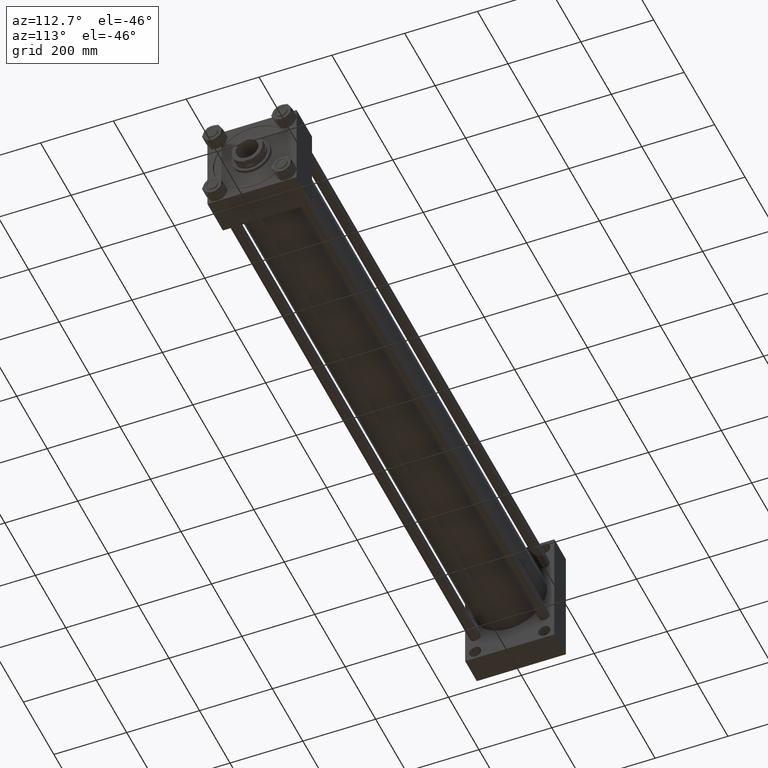
[diagram: clean part render]
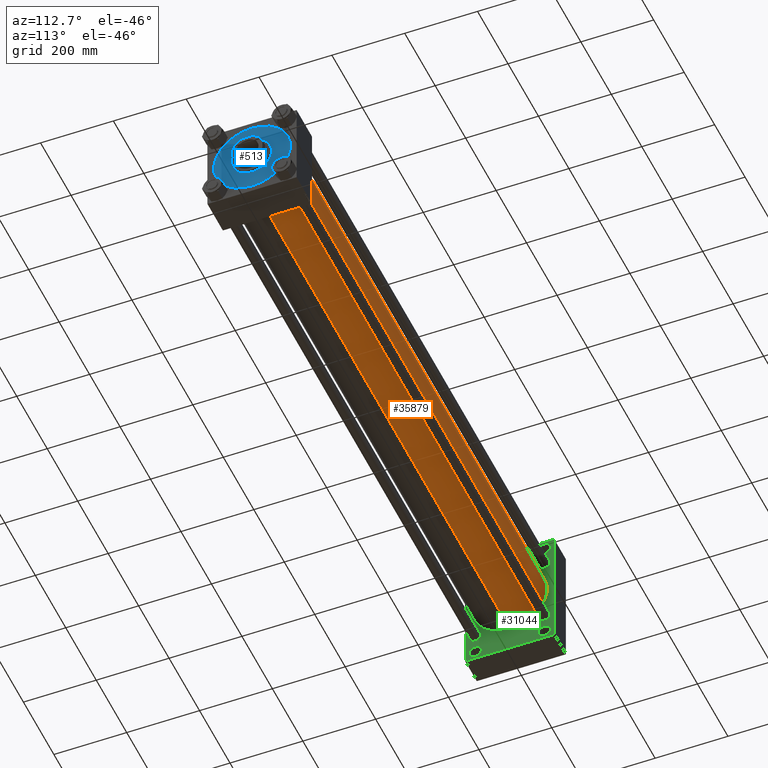
[diagram: same view with three faces highlighted in distinct colors, each labeled with its STEP entity id]
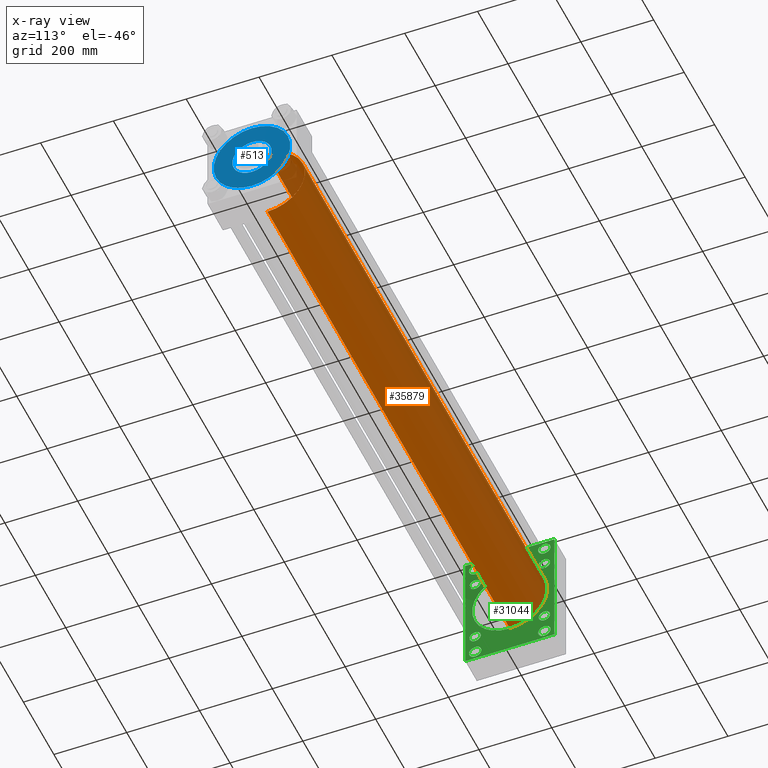
[diagram: x-ray of the same camera — body ghosted, the three highlighted faces saturated]
A machine part, auxiliary view with three faces highlighted in distinct colors.
The next image is the same camera in x-ray (body ghosted, the three faces saturated) — at least one of them is partly hidden behind the body in this view.
Their STEP definitions:

[orange] entity #35879 — the highlighted cylindrical surface (partial cylindrical patch) has radius 103 mm, axis along (-1, -0, -0).
#1401 = CARTESIAN_POINT ( 'NONE',  ( 1667.000000000000000, 1.001177681725252697E-14, -103.0000000000000000 ) ) ;
#2006 = ORIENTED_EDGE ( 'NONE', *, *, #9141, .F. ) ;
#3063 = VERTEX_POINT ( 'NONE', #11880 ) ;
#5039 = ORIENTED_EDGE ( 'NONE', *, *, #18078, .T. ) ;
#5589 = CARTESIAN_POINT ( 'NONE',  ( 1667.000000000000000, -2.602085213965210642E-15, 0.000000000000000000 ) ) ;
#6176 = DIRECTION ( 'NONE',  ( -1.000000000000000000, -0.000000000000000000, -0.000000000000000000 ) ) ;
#9087 = CIRCLE ( 'NONE', #31890, 103.0000000000000000 ) ;
#9141 = EDGE_CURVE ( 'NONE', #41980, #22929, #9087, .T. ) ;
#9630 = DIRECTION ( 'NONE',  ( 1.000000000000000000, 0.000000000000000000, 0.000000000000000000 ) ) ;
#11579 = CARTESIAN_POINT ( 'NONE',  ( 1667.000000000000000, -2.602085213965210642E-15, 103.0000000000000000 ) ) ;
#11880 = CARTESIAN_POINT ( 'NONE',  ( 76.00000000000007105, -2.602085213965210642E-15, 103.0000000000000000 ) ) ;
#12776 = FACE_OUTER_BOUND ( 'NONE', #30690, .T. ) ;
#16975 = DIRECTION ( 'NONE',  ( 0.000000000000000000, 0.000000000000000000, 1.000000000000000000 ) ) ;
#17552 = CARTESIAN_POINT ( 'NONE',  ( 1667.000000000000000, -2.602085213965210642E-15, 0.000000000000000000 ) ) ;
#18078 = EDGE_CURVE ( 'NONE', #41980, #43590, #33264, .T. ) ;
#18743 = LINE ( 'NONE', #11579, #31630 ) ;
#19004 = DIRECTION ( 'NONE',  ( -1.000000000000000000, -0.000000000000000000, -0.000000000000000000 ) ) ;
#20189 = CARTESIAN_POINT ( 'NONE',  ( 1667.000000000000000, -2.602085213965210642E-15, 103.0000000000000000 ) ) ;
#21312 = DIRECTION ( 'NONE',  ( 1.000000000000000000, -0.000000000000000000, 0.000000000000000000 ) ) ;
#22117 = AXIS2_PLACEMENT_3D ( 'NONE', #37135, #21312, #16975 ) ;
#22929 = VERTEX_POINT ( 'NONE', #20189 ) ;
#23758 = CIRCLE ( 'NONE', #22117, 103.0000000000000000 ) ;
#28349 = CYLINDRICAL_SURFACE ( 'NONE', #37454, 103.0000000000000000 ) ;
#29105 = DIRECTION ( 'NONE',  ( 0.000000000000000000, 0.000000000000000000, 1.000000000000000000 ) ) ;
#29244 = EDGE_CURVE ( 'NONE', #22929, #3063, #18743, .T. ) ;
#30690 = EDGE_LOOP ( 'NONE', ( #2006, #5039, #31717, #43586 ) ) ;
#31630 = VECTOR ( 'NONE', #19004, 1000.000000000000000 ) ;
#31717 = ORIENTED_EDGE ( 'NONE', *, *, #40564, .T. ) ;
#31890 = AXIS2_PLACEMENT_3D ( 'NONE', #17552, #9630, #45104 ) ;
#32914 = VECTOR ( 'NONE', #6176, 1000.000000000000000 ) ;
#33264 = LINE ( 'NONE', #48577, #32914 ) ;
#35879 = ADVANCED_FACE ( 'NONE', ( #12776 ), #28349, .T. ) ;
#37135 = CARTESIAN_POINT ( 'NONE',  ( 76.00000000000007105, -2.602085213965210642E-15, 0.000000000000000000 ) ) ;
#37454 = AXIS2_PLACEMENT_3D ( 'NONE', #5589, #43893, #29105 ) ;
#40564 = EDGE_CURVE ( 'NONE', #43590, #3063, #23758, .T. ) ;
#41863 = CARTESIAN_POINT ( 'NONE',  ( 76.00000000000007105, 1.001177681725252697E-14, -103.0000000000000000 ) ) ;
#41980 = VERTEX_POINT ( 'NONE', #1401 ) ;
#43586 = ORIENTED_EDGE ( 'NONE', *, *, #29244, .F. ) ;
#43590 = VERTEX_POINT ( 'NONE', #41863 ) ;
#43893 = DIRECTION ( 'NONE',  ( -1.000000000000000000, -0.000000000000000000, -0.000000000000000000 ) ) ;
#45104 = DIRECTION ( 'NONE',  ( 0.000000000000000000, 0.000000000000000000, -1.000000000000000000 ) ) ;
#48577 = CARTESIAN_POINT ( 'NONE',  ( 1667.000000000000000, 1.001177681725252697E-14, -103.0000000000000000 ) ) ;

[blue] entity #513 — the highlighted planar face has unit normal (1, 0, 0).
#513 = ADVANCED_FACE ( 'NONE', ( #46733, #3829 ), #31166, .T. ) ;
#1734 = CIRCLE ( 'NONE', #30295, 54.00000000000000000 ) ;
#3829 = FACE_OUTER_BOUND ( 'NONE', #48872, .T. ) ;
#4737 = EDGE_CURVE ( 'NONE', #45446, #37093, #38262, .T. ) ;
#5986 = DIRECTION ( 'NONE',  ( 0.000000000000000000, 0.000000000000000000, 1.000000000000000000 ) ) ;
#7528 = ORIENTED_EDGE ( 'NONE', *, *, #4737, .T. ) ;
#7869 = EDGE_CURVE ( 'NONE', #30541, #15720, #9045, .T. ) ;
#9045 = CIRCLE ( 'NONE', #41644, 54.00000000000000000 ) ;
#9441 = EDGE_CURVE ( 'NONE', #15720, #30541, #1734, .T. ) ;
#13289 = DIRECTION ( 'NONE',  ( 1.000000000000000000, 0.000000000000000000, 0.000000000000000000 ) ) ;
#14211 = ORIENTED_EDGE ( 'NONE', *, *, #28001, .T. ) ;
#14414 = DIRECTION ( 'NONE',  ( 1.000000000000000000, 0.000000000000000000, 0.000000000000000000 ) ) ;
#15720 = VERTEX_POINT ( 'NONE', #32326 ) ;
#15991 = CARTESIAN_POINT ( 'NONE',  ( 105.2500000000000000, 1.288940756102589170E-14, 28.69999999999999929 ) ) ;
#17601 = DIRECTION ( 'NONE',  ( 0.000000000000000000, 0.000000000000000000, 1.000000000000000000 ) ) ;
#18100 = DIRECTION ( 'NONE',  ( 1.000000000000000000, 0.000000000000000000, 0.000000000000000000 ) ) ;
#18199 = DIRECTION ( 'NONE',  ( 1.000000000000000000, 0.000000000000000000, 0.000000000000000000 ) ) ;
#19420 = CARTESIAN_POINT ( 'NONE',  ( 0.000000000000000000, 0.000000000000000000, 28.69999999999999929 ) ) ;
#20185 = AXIS2_PLACEMENT_3D ( 'NONE', #30189, #22785, #18199 ) ;
#20946 = DIRECTION ( 'NONE',  ( 0.000000000000000000, 0.000000000000000000, 1.000000000000000000 ) ) ;
#22709 = CARTESIAN_POINT ( 'NONE',  ( -54.00000000000000000, 0.000000000000000000, 28.69999999999999929 ) ) ;
#22785 = DIRECTION ( 'NONE',  ( 0.000000000000000000, 0.000000000000000000, 1.000000000000000000 ) ) ;
#23009 = DIRECTION ( 'NONE',  ( 0.000000000000000000, 0.000000000000000000, 1.000000000000000000 ) ) ;
#23259 = EDGE_LOOP ( 'NONE', ( #24318, #25684 ) ) ;
#24318 = ORIENTED_EDGE ( 'NONE', *, *, #7869, .F. ) ;
#25684 = ORIENTED_EDGE ( 'NONE', *, *, #9441, .F. ) ;
#25799 = CARTESIAN_POINT ( 'NONE',  ( -105.2500000000000000, 0.000000000000000000, 28.69999999999999929 ) ) ;
#28001 = EDGE_CURVE ( 'NONE', #37093, #45446, #48726, .T. ) ;
#30189 = CARTESIAN_POINT ( 'NONE',  ( 0.000000000000000000, 0.000000000000000000, 28.69999999999999929 ) ) ;
#30295 = AXIS2_PLACEMENT_3D ( 'NONE', #44539, #5986, #14414 ) ;
#30541 = VERTEX_POINT ( 'NONE', #22709 ) ;
#31166 = PLANE ( 'NONE',  #46315 ) ;
#31664 = DIRECTION ( 'NONE',  ( 1.000000000000000000, 0.000000000000000000, -0.000000000000000000 ) ) ;
#32326 = CARTESIAN_POINT ( 'NONE',  ( 54.00000000000000000, 6.613092715395707467E-15, 28.69999999999999929 ) ) ;
#37093 = VERTEX_POINT ( 'NONE', #25799 ) ;
#38262 = CIRCLE ( 'NONE', #39082, 105.2500000000000000 ) ;
#39082 = AXIS2_PLACEMENT_3D ( 'NONE', #48258, #20946, #13289 ) ;
#41644 = AXIS2_PLACEMENT_3D ( 'NONE', #49239, #17601, #18100 ) ;
#44539 = CARTESIAN_POINT ( 'NONE',  ( 0.000000000000000000, 0.000000000000000000, 28.69999999999999929 ) ) ;
#45446 = VERTEX_POINT ( 'NONE', #15991 ) ;
#46315 = AXIS2_PLACEMENT_3D ( 'NONE', #19420, #23009, #31664 ) ;
#46733 = FACE_BOUND ( 'NONE', #23259, .T. ) ;
#48258 = CARTESIAN_POINT ( 'NONE',  ( 0.000000000000000000, 0.000000000000000000, 28.69999999999999929 ) ) ;
#48726 = CIRCLE ( 'NONE', #20185, 105.2500000000000000 ) ;
#48872 = EDGE_LOOP ( 'NONE', ( #14211, #7528 ) ) ;
#49239 = CARTESIAN_POINT ( 'NONE',  ( 0.000000000000000000, 0.000000000000000000, 28.69999999999999929 ) ) ;

[green] entity #31044 — the highlighted planar face has unit normal (-1, 0, 0).
#169 = VERTEX_POINT ( 'NONE', #5408 ) ;
#582 = VERTEX_POINT ( 'NONE', #34753 ) ;
#831 = VERTEX_POINT ( 'NONE', #26465 ) ;
#1126 = ORIENTED_EDGE ( 'NONE', *, *, #14646, .T. ) ;
#1320 = VERTEX_POINT ( 'NONE', #34253 ) ;
#1484 = VECTOR ( 'NONE', #44505, 1000.000000000000000 ) ;
#1564 = EDGE_LOOP ( 'NONE', ( #46980, #41896 ) ) ;
#1581 = VERTEX_POINT ( 'NONE', #43364 ) ;
#1614 = DIRECTION ( 'NONE',  ( -1.000000000000000000, 0.000000000000000000, -0.000000000000000000 ) ) ;
#1903 = DIRECTION ( 'NONE',  ( 0.000000000000000000, 0.000000000000000000, 1.000000000000000000 ) ) ;
#2316 = EDGE_CURVE ( 'NONE', #831, #9971, #24636, .T. ) ;
#2388 = CIRCLE ( 'NONE', #30943, 17.00000000000012790 ) ;
#2598 = CIRCLE ( 'NONE', #12390, 15.50000000000006928 ) ;
#3063 = VERTEX_POINT ( 'NONE', #11880 ) ;
#3420 = CARTESIAN_POINT ( 'NONE',  ( 76.00000000000000000, -122.5000000000000568, -172.9999999999999716 ) ) ;
#3706 = ORIENTED_EDGE ( 'NONE', *, *, #17913, .T. ) ;
#3956 = EDGE_CURVE ( 'NONE', #30965, #48974, #4263, .T. ) ;
#3961 = EDGE_CURVE ( 'NONE', #15967, #48974, #18865, .T. ) ;
#3980 = CIRCLE ( 'NONE', #42305, 15.50000000000051337 ) ;
#4263 = LINE ( 'NONE', #19605, #17096 ) ;
#4468 = EDGE_CURVE ( 'NONE', #34173, #30329, #2388, .T. ) ;
#5297 = AXIS2_PLACEMENT_3D ( 'NONE', #36978, #29070, #16557 ) ;
#5301 = CARTESIAN_POINT ( 'NONE',  ( 76.00000000000000000, -95.09999999999996589, -110.6000000000005627 ) ) ;
#5392 = EDGE_CURVE ( 'NONE', #50086, #30427, #39929, .T. ) ;
#5408 = CARTESIAN_POINT ( 'NONE',  ( 76.00000000000000000, -95.09999999999996589, -79.59999999999952536 ) ) ;
#5628 = CIRCLE ( 'NONE', #23618, 17.00000000000012790 ) ;
#5629 = EDGE_LOOP ( 'NONE', ( #50093, #35381 ) ) ;
#5632 = DIRECTION ( 'NONE',  ( -1.000000000000000000, 0.000000000000000000, -0.000000000000000000 ) ) ;
#5677 = EDGE_CURVE ( 'NONE', #30965, #6204, #11463, .T. ) ;
#5735 = DIRECTION ( 'NONE',  ( -1.000000000000000000, 0.000000000000000000, -0.000000000000000000 ) ) ;
#5802 = VERTEX_POINT ( 'NONE', #39756 ) ;
#5809 = VECTOR ( 'NONE', #49889, 1000.000000000000000 ) ;
#6092 = VERTEX_POINT ( 'NONE', #45057 ) ;
#6178 = FACE_OUTER_BOUND ( 'NONE', #21019, .T. ) ;
#6204 = VERTEX_POINT ( 'NONE', #26425 ) ;
#6423 = DIRECTION ( 'NONE',  ( -1.000000000000000000, 0.000000000000000000, -0.000000000000000000 ) ) ;
#6696 = FACE_BOUND ( 'NONE', #48973, .T. ) ;
#7151 = DIRECTION ( 'NONE',  ( 0.000000000000000000, 0.000000000000000000, 1.000000000000000000 ) ) ;
#7471 = ORIENTED_EDGE ( 'NONE', *, *, #32506, .T. ) ;
#7511 = CARTESIAN_POINT ( 'NONE',  ( 76.00000000000000000, 121.9999999999999716, -173.4999999999999432 ) ) ;
#7631 = CARTESIAN_POINT ( 'NONE',  ( 76.00000000000000000, 122.4999999999999716, -173.4999999999999432 ) ) ;
#7652 = DIRECTION ( 'NONE',  ( -1.000000000000000000, 0.000000000000000000, -0.000000000000000000 ) ) ;
#7782 = ORIENTED_EDGE ( 'NONE', *, *, #33643, .T. ) ;
#8510 = CARTESIAN_POINT ( 'NONE',  ( 76.00000000000000000, -122.5000000000000568, 173.0000000000000284 ) ) ;
#8561 = DIRECTION ( 'NONE',  ( -1.000000000000000000, 0.000000000000000000, -0.000000000000000000 ) ) ;
#8640 = AXIS2_PLACEMENT_3D ( 'NONE', #23476, #7652, #15815 ) ;
#9053 = CARTESIAN_POINT ( 'NONE',  ( 76.00000000000000000, -94.99999999999998579, 167.0000000000000853 ) ) ;
#9113 = VERTEX_POINT ( 'NONE', #33132 ) ;
#9275 = CARTESIAN_POINT ( 'NONE',  ( 76.00000000000000000, 122.4999999999999716, 173.0000000000000568 ) ) ;
#9574 = EDGE_CURVE ( 'NONE', #30845, #6204, #49630, .T. ) ;
#9662 = DIRECTION ( 'NONE',  ( 0.000000000000000000, 0.000000000000000000, 1.000000000000000000 ) ) ;
#9680 = VERTEX_POINT ( 'NONE', #8510 ) ;
#9920 = DIRECTION ( 'NONE',  ( 1.000000000000000000, -0.000000000000000000, 0.000000000000000000 ) ) ;
#9971 = VERTEX_POINT ( 'NONE', #34111 ) ;
#9972 = DIRECTION ( 'NONE',  ( -1.000000000000000000, 0.000000000000000000, -0.000000000000000000 ) ) ;
#10581 = VERTEX_POINT ( 'NONE', #45712 ) ;
#10803 = CARTESIAN_POINT ( 'NONE',  ( 76.00000000000000000, 122.4999999999999716, -172.9999999999999432 ) ) ;
#11463 = LINE ( 'NONE', #7631, #16283 ) ;
#11711 = DIRECTION ( 'NONE',  ( 0.000000000000000000, -1.000000000000000000, -2.265761274745217480E-16 ) ) ;
#11740 = EDGE_LOOP ( 'NONE', ( #30987, #31398 ) ) ;
#11880 = CARTESIAN_POINT ( 'NONE',  ( 76.00000000000007105, -2.602085213965210642E-15, 103.0000000000000000 ) ) ;
#12390 = AXIS2_PLACEMENT_3D ( 'NONE', #34241, #25821, #29661 ) ;
#13797 = DIRECTION ( 'NONE',  ( 0.000000000000000000, 0.000000000000000000, 1.000000000000000000 ) ) ;
#13870 = DIRECTION ( 'NONE',  ( -1.000000000000000000, 0.000000000000000000, -0.000000000000000000 ) ) ;
#13885 = CIRCLE ( 'NONE', #30175, 17.00000000000012790 ) ;
#14030 = CIRCLE ( 'NONE', #18956, 17.00000000000012790 ) ;
#14370 = AXIS2_PLACEMENT_3D ( 'NONE', #28454, #1614, #44501 ) ;
#14646 = EDGE_CURVE ( 'NONE', #9113, #46724, #2598, .T. ) ;
#14868 = CARTESIAN_POINT ( 'NONE',  ( 76.00000000000000000, -94.99999999999998579, -167.0000000000001137 ) ) ;
#14974 = EDGE_CURVE ( 'NONE', #30329, #34173, #14030, .T. ) ;
#15205 = CARTESIAN_POINT ( 'NONE',  ( 76.00000000000000000, 95.09999999999999432, 79.59999999999995168 ) ) ;
#15815 = DIRECTION ( 'NONE',  ( 0.000000000000000000, 0.000000000000000000, 1.000000000000000000 ) ) ;
#15967 = VERTEX_POINT ( 'NONE', #9275 ) ;
#16116 = DIRECTION ( 'NONE',  ( -1.000000000000000000, 0.000000000000000000, -0.000000000000000000 ) ) ;
#16151 = ORIENTED_EDGE ( 'NONE', *, *, #3961, .F. ) ;
#16283 = VECTOR ( 'NONE', #11711, 1000.000000000000000 ) ;
#16543 = VERTEX_POINT ( 'NONE', #30062 ) ;
#16557 = DIRECTION ( 'NONE',  ( 0.000000000000000000, 0.000000000000000000, 1.000000000000000000 ) ) ;
#16975 = DIRECTION ( 'NONE',  ( 0.000000000000000000, 0.000000000000000000, 1.000000000000000000 ) ) ;
#17096 = VECTOR ( 'NONE', #35182, 1000.000000000000114 ) ;
#17142 = DIRECTION ( 'NONE',  ( 0.000000000000000000, 0.000000000000000000, 1.000000000000000000 ) ) ;
#17887 = CARTESIAN_POINT ( 'NONE',  ( 76.00000000000000000, -95.09999999999996589, 95.10000000000005116 ) ) ;
#17913 = EDGE_CURVE ( 'NONE', #9971, #9680, #19079, .T. ) ;
#17931 = AXIS2_PLACEMENT_3D ( 'NONE', #34265, #6423, #29684 ) ;
#18148 = CARTESIAN_POINT ( 'NONE',  ( 76.00000000000000000, 94.99999999999998579, -150.0000000000000000 ) ) ;
#18201 = ORIENTED_EDGE ( 'NONE', *, *, #20826, .T. ) ;
#18251 = CARTESIAN_POINT ( 'NONE',  ( 76.00000000000000000, -95.09999999999996589, -95.10000000000005116 ) ) ;
#18438 = ORIENTED_EDGE ( 'NONE', *, *, #41379, .T. ) ;
#18491 = CARTESIAN_POINT ( 'NONE',  ( 76.00000000000000000, -122.0000000000000568, -173.5000000000000000 ) ) ;
#18578 = ORIENTED_EDGE ( 'NONE', *, *, #29308, .T. ) ;
#18612 = EDGE_CURVE ( 'NONE', #1320, #5802, #35472, .T. ) ;
#18735 = CIRCLE ( 'NONE', #47259, 15.50000000000051337 ) ;
#18771 = CIRCLE ( 'NONE', #29383, 103.0000000000000000 ) ;
#18865 = LINE ( 'NONE', #27515, #50510 ) ;
#18956 = AXIS2_PLACEMENT_3D ( 'NONE', #26010, #41063, #25267 ) ;
#19002 = EDGE_LOOP ( 'NONE', ( #7782, #18438 ) ) ;
#19052 = ORIENTED_EDGE ( 'NONE', *, *, #5677, .F. ) ;
#19079 = LINE ( 'NONE', #39198, #48401 ) ;
#19428 = VECTOR ( 'NONE', #32257, 1000.000000000000000 ) ;
#19605 = CARTESIAN_POINT ( 'NONE',  ( 76.00000000000000000, 122.4999999999999716, -172.9999999999999432 ) ) ;
#19715 = AXIS2_PLACEMENT_3D ( 'NONE', #39341, #16116, #35781 ) ;
#19857 = DIRECTION ( 'NONE',  ( 0.000000000000000000, 0.000000000000000000, -1.000000000000000000 ) ) ;
#19917 = ORIENTED_EDGE ( 'NONE', *, *, #3956, .T. ) ;
#20060 = EDGE_CURVE ( 'NONE', #5802, #1320, #50235, .T. ) ;
#20508 = ORIENTED_EDGE ( 'NONE', *, *, #31357, .T. ) ;
#20667 = EDGE_CURVE ( 'NONE', #30427, #50086, #25776, .T. ) ;
#20826 = EDGE_CURVE ( 'NONE', #43322, #582, #24155, .T. ) ;
#21019 = EDGE_LOOP ( 'NONE', ( #19052, #19917, #16151, #29433, #50360, #3706, #18578, #26943 ) ) ;
#21262 = ORIENTED_EDGE ( 'NONE', *, *, #29049, .T. ) ;
#21312 = DIRECTION ( 'NONE',  ( 1.000000000000000000, -0.000000000000000000, 0.000000000000000000 ) ) ;
#21765 = FACE_BOUND ( 'NONE', #49305, .T. ) ;
#21773 = DIRECTION ( 'NONE',  ( 0.000000000000000000, 0.000000000000000000, 1.000000000000000000 ) ) ;
#22016 = DIRECTION ( 'NONE',  ( -1.000000000000000000, 0.000000000000000000, -0.000000000000000000 ) ) ;
#22117 = AXIS2_PLACEMENT_3D ( 'NONE', #37135, #21312, #16975 ) ;
#22493 = AXIS2_PLACEMENT_3D ( 'NONE', #18251, #5735, #33826 ) ;
#22908 = DIRECTION ( 'NONE',  ( 0.000000000000000000, -0.7071067811865474617, 0.7071067811865474617 ) ) ;
#23203 = DIRECTION ( 'NONE',  ( 0.000000000000000000, 0.000000000000000000, 1.000000000000000000 ) ) ;
#23476 = CARTESIAN_POINT ( 'NONE',  ( 76.00000000000000000, 94.99999999999998579, 149.9999999999999716 ) ) ;
#23512 = EDGE_CURVE ( 'NONE', #169, #29653, #24150, .T. ) ;
#23618 = AXIS2_PLACEMENT_3D ( 'NONE', #34281, #13870, #21773 ) ;
#23758 = CIRCLE ( 'NONE', #22117, 103.0000000000000000 ) ;
#23803 = CIRCLE ( 'NONE', #19715, 15.50000000000006928 ) ;
#24150 = CIRCLE ( 'NONE', #22493, 15.50000000000051337 ) ;
#24155 = CIRCLE ( 'NONE', #27377, 17.00000000000012790 ) ;
#24295 = EDGE_CURVE ( 'NONE', #15967, #831, #50460, .T. ) ;
#24396 = DIRECTION ( 'NONE',  ( 0.000000000000000000, 0.000000000000000000, 1.000000000000000000 ) ) ;
#24636 = LINE ( 'NONE', #32792, #1484 ) ;
#25267 = DIRECTION ( 'NONE',  ( 0.000000000000000000, 0.000000000000000000, 1.000000000000000000 ) ) ;
#25776 = CIRCLE ( 'NONE', #8640, 17.00000000000012790 ) ;
#25805 = VECTOR ( 'NONE', #22908, 1000.000000000000114 ) ;
#25821 = DIRECTION ( 'NONE',  ( -1.000000000000000000, 0.000000000000000000, -0.000000000000000000 ) ) ;
#26010 = CARTESIAN_POINT ( 'NONE',  ( 76.00000000000000000, -94.99999999999998579, 149.9999999999999716 ) ) ;
#26425 = CARTESIAN_POINT ( 'NONE',  ( 76.00000000000000000, -122.0000000000000000, -173.5000000000000000 ) ) ;
#26465 = CARTESIAN_POINT ( 'NONE',  ( 76.00000000000000000, 121.9999999999999716, 173.5000000000000568 ) ) ;
#26734 = CARTESIAN_POINT ( 'NONE',  ( 76.00000000000000000, 121.9999999999999716, 173.5000000000000568 ) ) ;
#26943 = ORIENTED_EDGE ( 'NONE', *, *, #9574, .T. ) ;
#27039 = AXIS2_PLACEMENT_3D ( 'NONE', #27281, #38753, #23203 ) ;
#27281 = CARTESIAN_POINT ( 'NONE',  ( 76.00000000000000000, -95.09999999999996589, 95.10000000000005116 ) ) ;
#27377 = AXIS2_PLACEMENT_3D ( 'NONE', #47361, #8561, #24396 ) ;
#27515 = CARTESIAN_POINT ( 'NONE',  ( 76.00000000000000000, 122.4999999999999716, 173.5000000000000568 ) ) ;
#28454 = CARTESIAN_POINT ( 'NONE',  ( 76.00000000000000000, 95.09999999999999432, -95.10000000000002274 ) ) ;
#29049 = EDGE_CURVE ( 'NONE', #582, #43322, #35713, .T. ) ;
#29070 = DIRECTION ( 'NONE',  ( -1.000000000000000000, 0.000000000000000000, -0.000000000000000000 ) ) ;
#29308 = EDGE_CURVE ( 'NONE', #9680, #30845, #42473, .T. ) ;
#29383 = AXIS2_PLACEMENT_3D ( 'NONE', #40785, #9920, #9662 ) ;
#29428 = DIRECTION ( 'NONE',  ( 0.000000000000000000, 0.000000000000000000, 1.000000000000000000 ) ) ;
#29433 = ORIENTED_EDGE ( 'NONE', *, *, #24295, .T. ) ;
#29441 = FACE_BOUND ( 'NONE', #11740, .T. ) ;
#29490 = CARTESIAN_POINT ( 'NONE',  ( 76.00000000000000000, -94.99999999999998579, -150.0000000000000000 ) ) ;
#29653 = VERTEX_POINT ( 'NONE', #5301 ) ;
#29661 = DIRECTION ( 'NONE',  ( 0.000000000000000000, 0.000000000000000000, 1.000000000000000000 ) ) ;
#29684 = DIRECTION ( 'NONE',  ( 0.000000000000000000, 0.000000000000000000, 1.000000000000000000 ) ) ;
#29691 = FACE_BOUND ( 'NONE', #30206, .T. ) ;
#30062 = CARTESIAN_POINT ( 'NONE',  ( 76.00000000000000000, -95.09999999999996589, 79.59999999999952536 ) ) ;
#30175 = AXIS2_PLACEMENT_3D ( 'NONE', #18148, #5632, #17142 ) ;
#30206 = EDGE_LOOP ( 'NONE', ( #7471, #36376 ) ) ;
#30329 = VERTEX_POINT ( 'NONE', #43665 ) ;
#30427 = VERTEX_POINT ( 'NONE', #33446 ) ;
#30845 = VERTEX_POINT ( 'NONE', #3420 ) ;
#30943 = AXIS2_PLACEMENT_3D ( 'NONE', #33755, #41907, #29428 ) ;
#30965 = VERTEX_POINT ( 'NONE', #7511 ) ;
#30987 = ORIENTED_EDGE ( 'NONE', *, *, #18612, .T. ) ;
#31044 = ADVANCED_FACE ( 'NONE', ( #41661, #21765, #45487, #29691, #37095, #29441, #41148, #6696, #45741, #6178 ), #34018, .F. ) ;
#31357 = EDGE_CURVE ( 'NONE', #29653, #169, #3980, .T. ) ;
#31398 = ORIENTED_EDGE ( 'NONE', *, *, #20060, .T. ) ;
#32257 = DIRECTION ( 'NONE',  ( 0.000000000000000000, 0.000000000000000000, -1.000000000000000000 ) ) ;
#32506 = EDGE_CURVE ( 'NONE', #10581, #6092, #5628, .T. ) ;
#32792 = CARTESIAN_POINT ( 'NONE',  ( 76.00000000000000000, 122.4999999999999716, 173.5000000000000568 ) ) ;
#33132 = CARTESIAN_POINT ( 'NONE',  ( 76.00000000000000000, 95.09999999999999432, 110.6000000000000938 ) ) ;
#33446 = CARTESIAN_POINT ( 'NONE',  ( 76.00000000000000000, 94.99999999999998579, 167.0000000000000853 ) ) ;
#33470 = DIRECTION ( 'NONE',  ( -1.000000000000000000, 0.000000000000000000, -0.000000000000000000 ) ) ;
#33643 = EDGE_CURVE ( 'NONE', #16543, #1581, #18735, .T. ) ;
#33755 = CARTESIAN_POINT ( 'NONE',  ( 76.00000000000000000, -94.99999999999998579, 149.9999999999999716 ) ) ;
#33826 = DIRECTION ( 'NONE',  ( 0.000000000000000000, 0.000000000000000000, 1.000000000000000000 ) ) ;
#34018 = PLANE ( 'NONE',  #49634 ) ;
#34111 = CARTESIAN_POINT ( 'NONE',  ( 76.00000000000000000, -122.0000000000000000, 173.5000000000000284 ) ) ;
#34173 = VERTEX_POINT ( 'NONE', #9053 ) ;
#34241 = CARTESIAN_POINT ( 'NONE',  ( 76.00000000000000000, 95.09999999999999432, 95.10000000000002274 ) ) ;
#34253 = CARTESIAN_POINT ( 'NONE',  ( 76.00000000000000000, 95.09999999999999432, -110.6000000000000938 ) ) ;
#34265 = CARTESIAN_POINT ( 'NONE',  ( 76.00000000000000000, 94.99999999999998579, 149.9999999999999716 ) ) ;
#34278 = EDGE_CURVE ( 'NONE', #3063, #43590, #18771, .T. ) ;
#34281 = CARTESIAN_POINT ( 'NONE',  ( 76.00000000000000000, 94.99999999999998579, -150.0000000000000000 ) ) ;
#34583 = ORIENTED_EDGE ( 'NONE', *, *, #23512, .T. ) ;
#34753 = CARTESIAN_POINT ( 'NONE',  ( 76.00000000000000000, -94.99999999999998579, -132.9999999999998579 ) ) ;
#35057 = ORIENTED_EDGE ( 'NONE', *, *, #14974, .T. ) ;
#35182 = DIRECTION ( 'NONE',  ( -0.000000000000000000, 0.7071067811865474617, 0.7071067811865474617 ) ) ;
#35381 = ORIENTED_EDGE ( 'NONE', *, *, #40564, .F. ) ;
#35472 = CIRCLE ( 'NONE', #5297, 15.50000000000006928 ) ;
#35713 = CIRCLE ( 'NONE', #40575, 17.00000000000012790 ) ;
#35781 = DIRECTION ( 'NONE',  ( 0.000000000000000000, 0.000000000000000000, 1.000000000000000000 ) ) ;
#36376 = ORIENTED_EDGE ( 'NONE', *, *, #37981, .T. ) ;
#36805 = CIRCLE ( 'NONE', #27039, 15.50000000000051337 ) ;
#36978 = CARTESIAN_POINT ( 'NONE',  ( 76.00000000000000000, 95.09999999999999432, -95.10000000000002274 ) ) ;
#37095 = FACE_BOUND ( 'NONE', #48564, .T. ) ;
#37135 = CARTESIAN_POINT ( 'NONE',  ( 76.00000000000007105, -2.602085213965210642E-15, 0.000000000000000000 ) ) ;
#37591 = CARTESIAN_POINT ( 'NONE',  ( 76.00000000000000000, 0.000000000000000000, 0.000000000000000000 ) ) ;
#37981 = EDGE_CURVE ( 'NONE', #6092, #10581, #13885, .T. ) ;
#38753 = DIRECTION ( 'NONE',  ( -1.000000000000000000, 0.000000000000000000, -0.000000000000000000 ) ) ;
#39198 = CARTESIAN_POINT ( 'NONE',  ( 76.00000000000000000, -122.5000000000000568, 173.0000000000000284 ) ) ;
#39341 = CARTESIAN_POINT ( 'NONE',  ( 76.00000000000000000, 95.09999999999999432, 95.10000000000002274 ) ) ;
#39629 = CARTESIAN_POINT ( 'NONE',  ( 76.00000000000000000, -122.5000000000000568, 173.5000000000000284 ) ) ;
#39756 = CARTESIAN_POINT ( 'NONE',  ( 76.00000000000000000, 95.09999999999999432, -79.59999999999995168 ) ) ;
#39929 = CIRCLE ( 'NONE', #17931, 17.00000000000012790 ) ;
#40564 = EDGE_CURVE ( 'NONE', #43590, #3063, #23758, .T. ) ;
#40575 = AXIS2_PLACEMENT_3D ( 'NONE', #29490, #40951, #1903 ) ;
#40785 = CARTESIAN_POINT ( 'NONE',  ( 76.00000000000007105, -2.602085213965210642E-15, 0.000000000000000000 ) ) ;
#40951 = DIRECTION ( 'NONE',  ( -1.000000000000000000, 0.000000000000000000, -0.000000000000000000 ) ) ;
#41063 = DIRECTION ( 'NONE',  ( -1.000000000000000000, 0.000000000000000000, -0.000000000000000000 ) ) ;
#41146 = EDGE_LOOP ( 'NONE', ( #18201, #21262 ) ) ;
#41148 = FACE_BOUND ( 'NONE', #19002, .T. ) ;
#41379 = EDGE_CURVE ( 'NONE', #1581, #16543, #36805, .T. ) ;
#41661 = FACE_BOUND ( 'NONE', #1564, .T. ) ;
#41863 = CARTESIAN_POINT ( 'NONE',  ( 76.00000000000007105, 1.001177681725252697E-14, -103.0000000000000000 ) ) ;
#41896 = ORIENTED_EDGE ( 'NONE', *, *, #20667, .T. ) ;
#41907 = DIRECTION ( 'NONE',  ( -1.000000000000000000, 0.000000000000000000, -0.000000000000000000 ) ) ;
#42305 = AXIS2_PLACEMENT_3D ( 'NONE', #49269, #9972, #13797 ) ;
#42473 = LINE ( 'NONE', #39629, #19428 ) ;
#43322 = VERTEX_POINT ( 'NONE', #14868 ) ;
#43364 = CARTESIAN_POINT ( 'NONE',  ( 76.00000000000000000, -95.09999999999996589, 110.6000000000005627 ) ) ;
#43379 = CARTESIAN_POINT ( 'NONE',  ( 76.00000000000000000, 94.99999999999998579, 132.9999999999998295 ) ) ;
#43590 = VERTEX_POINT ( 'NONE', #41863 ) ;
#43665 = CARTESIAN_POINT ( 'NONE',  ( 76.00000000000000000, -94.99999999999998579, 132.9999999999998295 ) ) ;
#44501 = DIRECTION ( 'NONE',  ( 0.000000000000000000, 0.000000000000000000, 1.000000000000000000 ) ) ;
#44505 = DIRECTION ( 'NONE',  ( 0.000000000000000000, -1.000000000000000000, -1.132880637372608740E-16 ) ) ;
#45057 = CARTESIAN_POINT ( 'NONE',  ( 76.00000000000000000, 94.99999999999998579, -132.9999999999998579 ) ) ;
#45243 = DIRECTION ( 'NONE',  ( -0.000000000000000000, 0.000000000000000000, 1.000000000000000000 ) ) ;
#45267 = ORIENTED_EDGE ( 'NONE', *, *, #49089, .T. ) ;
#45487 = FACE_BOUND ( 'NONE', #41146, .T. ) ;
#45712 = CARTESIAN_POINT ( 'NONE',  ( 76.00000000000000000, 94.99999999999998579, -167.0000000000001137 ) ) ;
#45741 = FACE_BOUND ( 'NONE', #5629, .T. ) ;
#46724 = VERTEX_POINT ( 'NONE', #15205 ) ;
#46980 = ORIENTED_EDGE ( 'NONE', *, *, #5392, .T. ) ;
#47259 = AXIS2_PLACEMENT_3D ( 'NONE', #17887, #33470, #7151 ) ;
#47361 = CARTESIAN_POINT ( 'NONE',  ( 76.00000000000000000, -94.99999999999998579, -150.0000000000000000 ) ) ;
#48401 = VECTOR ( 'NONE', #50218, 1000.000000000000114 ) ;
#48564 = EDGE_LOOP ( 'NONE', ( #20508, #34583 ) ) ;
#48973 = EDGE_LOOP ( 'NONE', ( #45267, #1126 ) ) ;
#48974 = VERTEX_POINT ( 'NONE', #10803 ) ;
#49089 = EDGE_CURVE ( 'NONE', #46724, #9113, #23803, .T. ) ;
#49269 = CARTESIAN_POINT ( 'NONE',  ( 76.00000000000000000, -95.09999999999996589, -95.10000000000005116 ) ) ;
#49305 = EDGE_LOOP ( 'NONE', ( #35057, #49616 ) ) ;
#49616 = ORIENTED_EDGE ( 'NONE', *, *, #4468, .T. ) ;
#49630 = LINE ( 'NONE', #18491, #5809 ) ;
#49634 = AXIS2_PLACEMENT_3D ( 'NONE', #37591, #22016, #45243 ) ;
#49889 = DIRECTION ( 'NONE',  ( 0.000000000000000000, 0.7071067811865279218, -0.7071067811865672237 ) ) ;
#50086 = VERTEX_POINT ( 'NONE', #43379 ) ;
#50093 = ORIENTED_EDGE ( 'NONE', *, *, #34278, .F. ) ;
#50218 = DIRECTION ( 'NONE',  ( -0.000000000000000000, -0.7071067811865474617, -0.7071067811865474617 ) ) ;
#50235 = CIRCLE ( 'NONE', #14370, 15.50000000000006928 ) ;
#50360 = ORIENTED_EDGE ( 'NONE', *, *, #2316, .T. ) ;
#50460 = LINE ( 'NONE', #26734, #25805 ) ;
#50510 = VECTOR ( 'NONE', #19857, 1000.000000000000000 ) ;